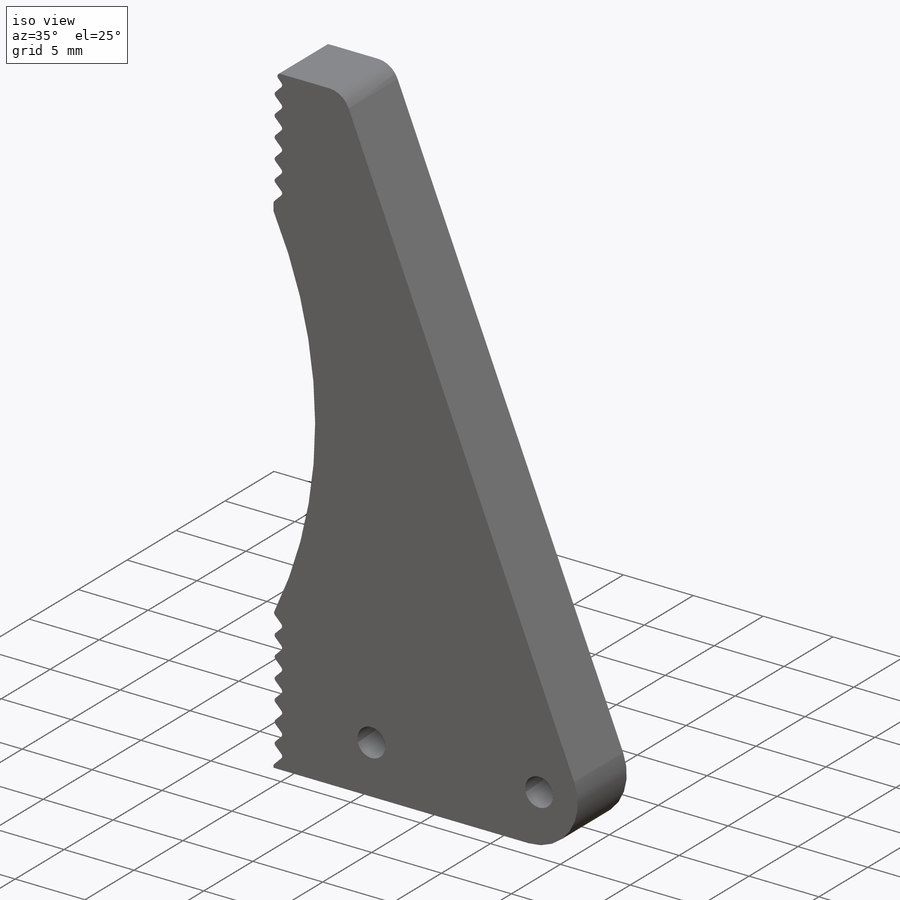
[diagram: iso view]
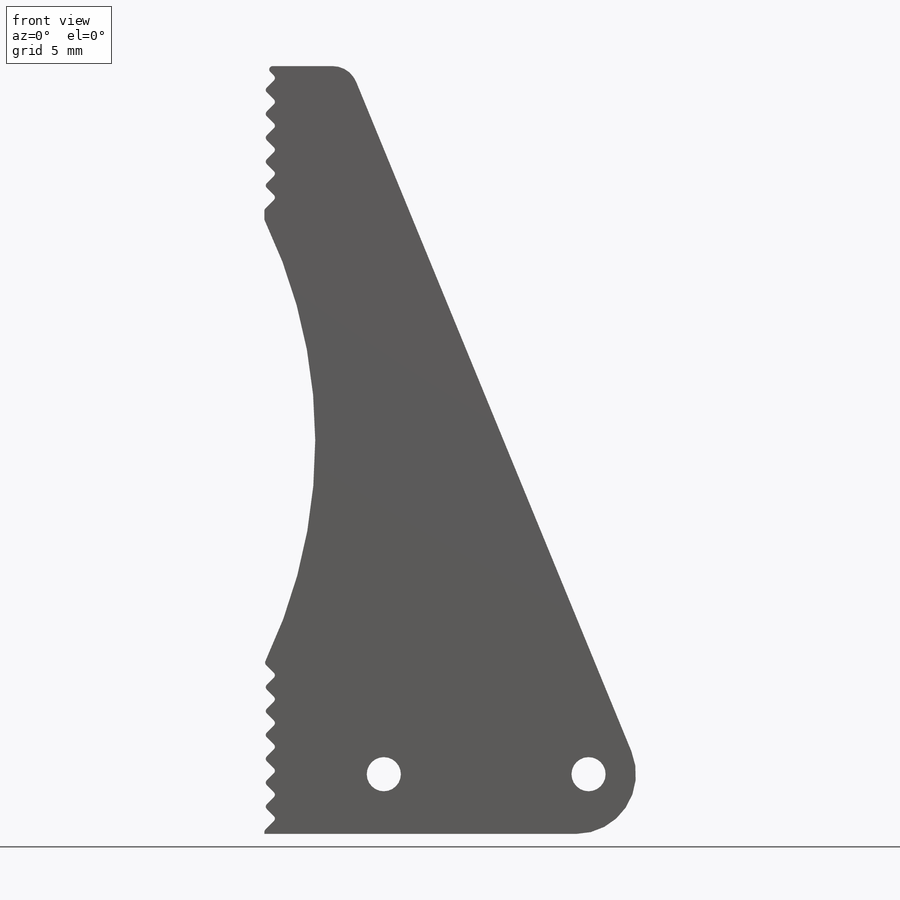
[diagram: front view]
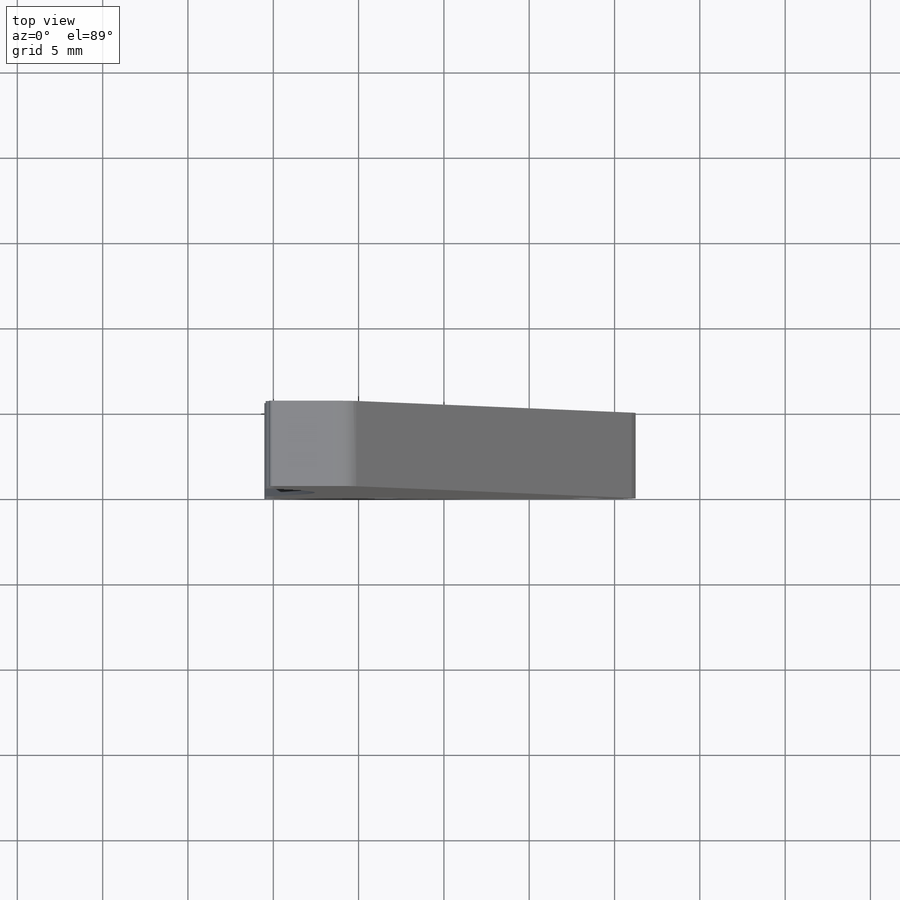
[diagram: top view]
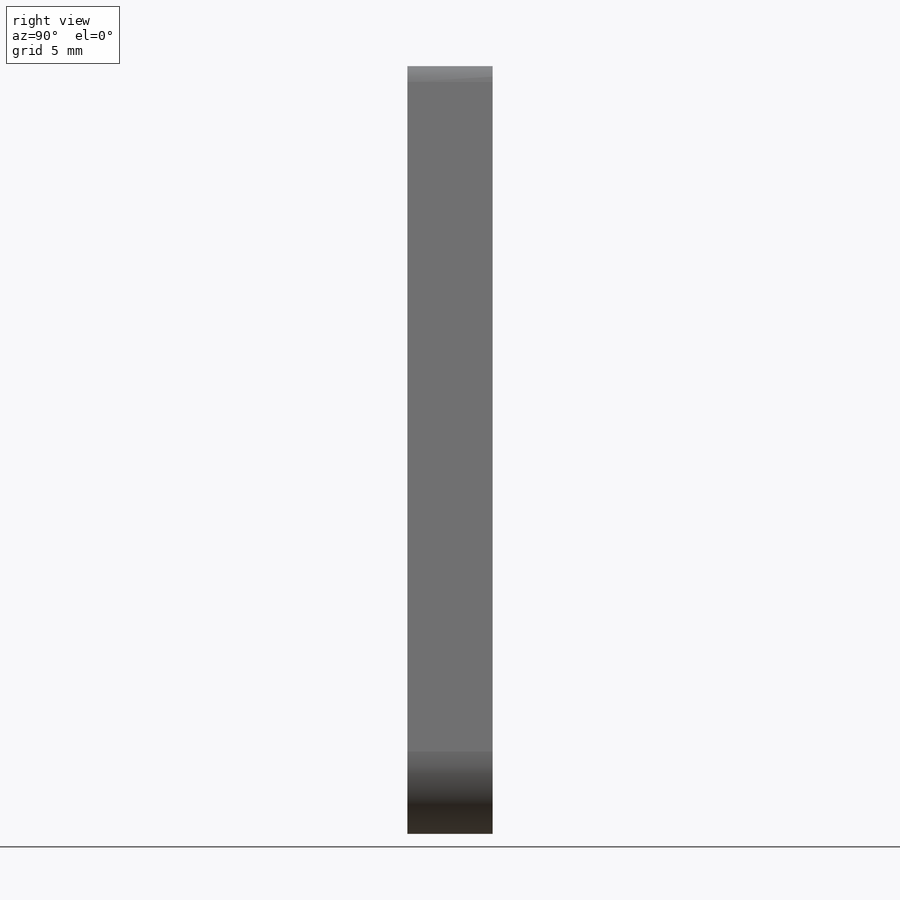
[diagram: right view]
SOLIDWORKS PART (.sldprt)
format: sldprt  version: not decoded by parser v0  size: 306,688 bytes
history: native  units: mm
features: fillet x4, sketch x3, cut_extrude x2, material x1, extrude x1 (+13 scaffold rows collapsed)
feature tree (24):
  scaffold x13  (default folders/planes/origin — collapsed)
  material  "Material <not specified>"
  sketch  "Sketch1"  dims[D6=2.0mm D1=45.0mm D2=10.0mm D3=9.0mm D4=5.0mm D5=23.5mm D7=7.0mm D8=12.0mm D9=3.5mm D10=3.5mm]
  extrude  "Extrude2"  Depth=5mm
  fillet  "Fillet2"  Radius=3.5mm
  fillet  "Fillet3"  Radius=1.5mm
  sketch  "Sketch3"  dims[D1=1.4mm]
  cut_extrude  "Extrude4"  Depth=5mm
  fillet  "Fillet4"  Radius=0.2mm
  sketch  "Sketch4"  dims[D1=1.4mm]
  cut_extrude  "Extrude5"  Depth=5mm
  fillet  "Fillet5"  Radius=0.2mm
decode coverage: 10 of 10 modeling features carry decoded parameters
note: suppression state not decoded; provenance and decode notes live in map.json
